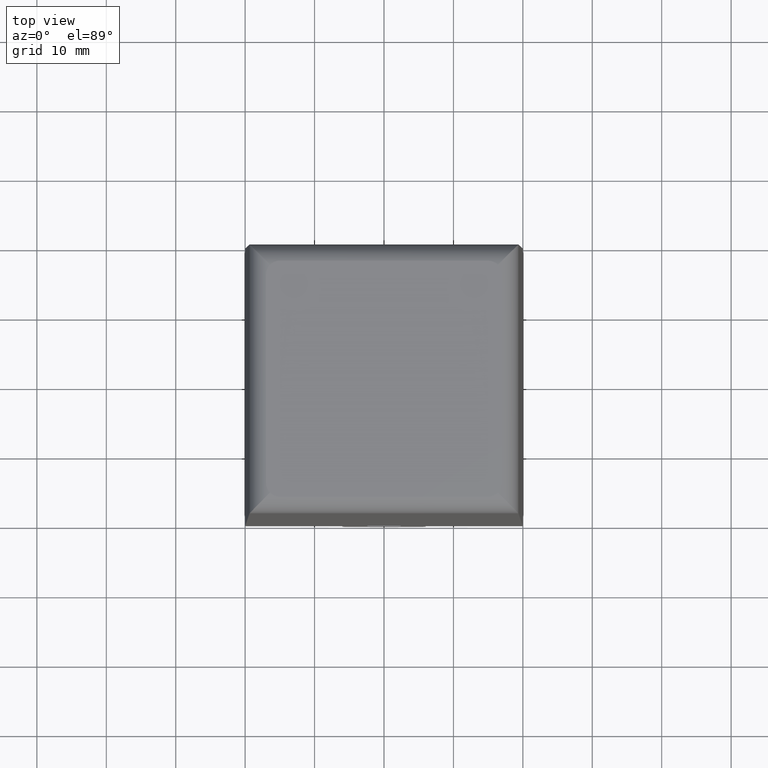
[diagram: clean part render]
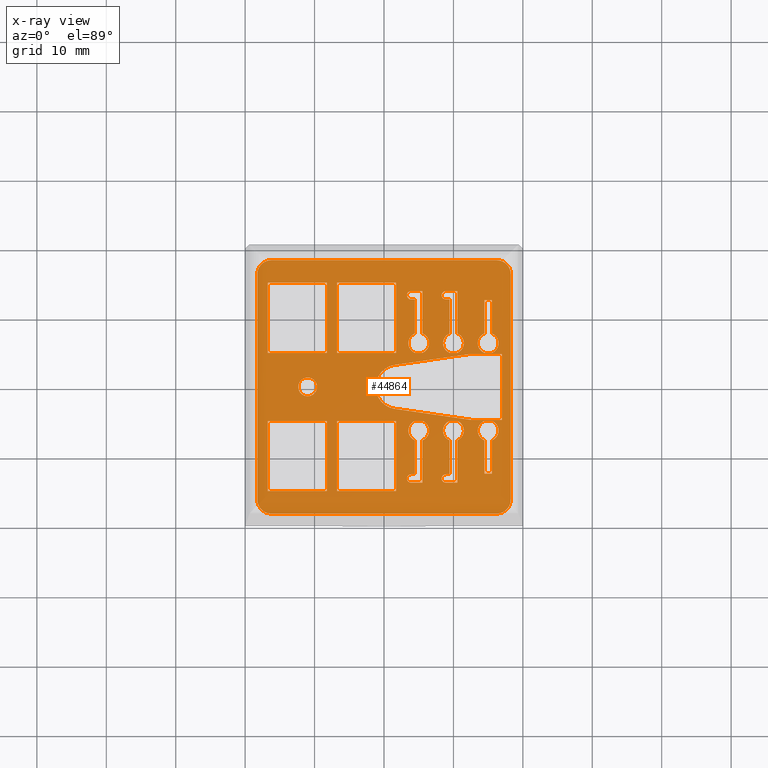
[diagram: x-ray — body ghosted, one internal face saturated and labeled with its STEP entity id]
A machine part, top view, then the same camera in x-ray: the body is ghosted and one INTERNAL B-rep face — a face not visible from any outside direction — is saturated and labeled: STEP entity #44864.
In plain terms, the highlighted planar face has unit normal (0, 0, 1).
Its self-contained STEP definition (entity closure, byte-faithful):
#2865=CARTESIAN_POINT('',(15.500000000000000,12.499999999999996,-0.711275113936979));
#2866=VERTEX_POINT('',#2865);
#3420=CARTESIAN_POINT('',(14.500000000000000,12.499999999999996,-0.711275113936979));
#3421=VERTEX_POINT('',#3420);
#3422=CARTESIAN_POINT('',(14.500000000000000,12.500000142020509,-0.711275113936977));
#3423=DIRECTION('',(1.0,0.0,0.0));
#3424=VECTOR('',#3423,1.0);
#3425=LINE('',#3422,#3424);
#3426=EDGE_CURVE('',#3421,#2866,#3425,.T.);
#3683=CARTESIAN_POINT('',(15.550002521962780,12.500000142020509,-0.711275113936980));
#3684=VERTEX_POINT('',#3683);
#3691=CARTESIAN_POINT('',(15.500000000000000,12.500000142020509,-0.711275113936977));
#3692=DIRECTION('',(1.0,0.0,0.0));
#3693=VECTOR('',#3692,0.050002521962778);
#3694=LINE('',#3691,#3693);
#3695=EDGE_CURVE('',#2866,#3684,#3694,.T.);
#3708=CARTESIAN_POINT('',(14.450002521962871,12.500000142020509,-0.711275113936978));
#3709=VERTEX_POINT('',#3708);
#3710=CARTESIAN_POINT('',(14.450002521962869,12.500000142020509,-0.711275113936977));
#3711=DIRECTION('',(1.0,0.0,0.0));
#3712=VECTOR('',#3711,0.049997478037131);
#3713=LINE('',#3710,#3712);
#3714=EDGE_CURVE('',#3709,#3421,#3713,.T.);
#4051=CARTESIAN_POINT('',(14.500000000000000,-12.500000000000000,-0.711275113936968));
#4052=VERTEX_POINT('',#4051);
#4606=CARTESIAN_POINT('',(15.500000000000000,-12.500000000000000,-0.711275113936968));
#4607=VERTEX_POINT('',#4606);
#4608=CARTESIAN_POINT('',(15.500000000000000,-12.499999857979947,-0.711275113936968));
#4609=DIRECTION('',(-1.0,0.0,0.0));
#4610=VECTOR('',#4609,1.0);
#4611=LINE('',#4608,#4610);
#4612=EDGE_CURVE('',#4607,#4052,#4611,.T.);
#4869=CARTESIAN_POINT('',(14.450002521962871,-12.499999857979947,-0.711275113936968));
#4870=VERTEX_POINT('',#4869);
#4877=CARTESIAN_POINT('',(14.500000000000000,-12.499999857979947,-0.711275113936967));
#4878=DIRECTION('',(-1.0,0.0,0.0));
#4879=VECTOR('',#4878,0.049997478037131);
#4880=LINE('',#4877,#4879);
#4881=EDGE_CURVE('',#4052,#4870,#4880,.T.);
#4894=CARTESIAN_POINT('',(15.550002521962780,-12.499999857979947,-0.711275113936968));
#4895=VERTEX_POINT('',#4894);
#4896=CARTESIAN_POINT('',(15.550002521962778,-12.499999857979947,-0.711275113936968));
#4897=DIRECTION('',(-1.0,0.0,0.0));
#4898=VECTOR('',#4897,0.050002521962778);
#4899=LINE('',#4896,#4898);
#4900=EDGE_CURVE('',#4895,#4607,#4899,.T.);
#30542=CARTESIAN_POINT('',(16.250002521962600,-18.249999857979489,-0.711275113936966));
#30543=VERTEX_POINT('',#30542);
#30550=CARTESIAN_POINT('',(2.000002521963051,-18.249999857979038,-0.711275113936499));
#30551=VERTEX_POINT('',#30550);
#30552=CARTESIAN_POINT('',(16.250002521962593,-18.249999857979493,-0.711275113936965));
#30553=DIRECTION('',(-1.0,0.0,0.0));
#30554=VECTOR('',#30553,14.249999999999545);
#30555=LINE('',#30552,#30554);
#30556=EDGE_CURVE('',#30543,#30551,#30555,.T.);
#30565=CARTESIAN_POINT('',(-1.999997478036950,-18.249999857979038,-0.711275113936499));
#30566=VERTEX_POINT('',#30565);
#30573=CARTESIAN_POINT('',(-16.249997478037407,-18.249999857979489,-0.711275113936946));
#30574=VERTEX_POINT('',#30573);
#30575=CARTESIAN_POINT('',(-1.999997478036956,-18.249999857979489,-0.711275113936954));
#30576=DIRECTION('',(-1.0,0.0,0.0));
#30577=VECTOR('',#30576,14.250000000000451);
#30578=LINE('',#30575,#30577);
#30579=EDGE_CURVE('',#30566,#30574,#30578,.T.);
#30611=CARTESIAN_POINT('',(18.250002521962600,-16.249999857979493,-0.711275113936969));
#30612=VERTEX_POINT('',#30611);
#30619=CARTESIAN_POINT('',(16.250002521962600,-16.249999857979493,-0.711275113936967));
#30620=DIRECTION('',(-6.123032E-017,6.123032E-017,-1.000000000000000));
#30621=DIRECTION('',(0.707106781186548,-0.707106781186548,-8.659275E-017));
#30622=AXIS2_PLACEMENT_3D('',#30619,#30620,#30621);
#30623=CIRCLE('',#30622,2.000000000000002);
#30624=EDGE_CURVE('',#30612,#30543,#30623,.T.);
#30636=CARTESIAN_POINT('',(18.250002521962600,16.250000142020966,-0.711275113936983));
#30637=VERTEX_POINT('',#30636);
#30644=CARTESIAN_POINT('',(18.250002521962717,16.250000142020962,-0.711275113936983));
#30645=DIRECTION('',(0.0,-1.0,0.0));
#30646=VECTOR('',#30645,32.500000000000455);
#30647=LINE('',#30644,#30646);
#30648=EDGE_CURVE('',#30637,#30612,#30647,.T.);
#30660=CARTESIAN_POINT('',(16.250002521962600,18.250000142020507,-0.711275113936982));
#30661=VERTEX_POINT('',#30660);
#30668=CARTESIAN_POINT('',(16.250002521962600,16.250000142020507,-0.711275113936981));
#30669=DIRECTION('',(-5.053195E-016,-5.053195E-016,-1.000000000000000));
#30670=DIRECTION('',(0.707106781186467,0.707106781186628,-7.146297E-016));
#30671=AXIS2_PLACEMENT_3D('',#30668,#30669,#30670);
#30672=CIRCLE('',#30671,2.0);
#30673=EDGE_CURVE('',#30661,#30637,#30672,.T.);
#30750=CARTESIAN_POINT('',(-18.249997478036949,16.250000142020507,-0.711275113936961));
#30751=VERTEX_POINT('',#30750);
#30758=CARTESIAN_POINT('',(-16.249997478037407,18.250000142020507,-0.711275113936965));
#30759=VERTEX_POINT('',#30758);
#30760=CARTESIAN_POINT('',(-16.249997478037407,16.250000142020507,-0.711275113936963));
#30761=DIRECTION('',(-6.123032E-017,6.123032E-017,-1.000000000000000));
#30762=DIRECTION('',(-0.707106781186568,0.707106781186527,8.659275E-017));
#30763=AXIS2_PLACEMENT_3D('',#30760,#30761,#30762);
#30764=CIRCLE('',#30763,2.0);
#30765=EDGE_CURVE('',#30751,#30759,#30764,.T.);
#30851=CARTESIAN_POINT('',(2.000002521963047,-18.249999857979489,-0.711275113936956));
#30852=DIRECTION('',(-1.0,0.0,0.0));
#30853=VECTOR('',#30852,4.000000000000004);
#30854=LINE('',#30851,#30853);
#30855=EDGE_CURVE('',#30551,#30566,#30854,.T.);
#30995=CARTESIAN_POINT('',(2.000002521963051,18.250000142020962,-0.711275113936950));
#30996=VERTEX_POINT('',#30995);
#31004=CARTESIAN_POINT('',(-1.999997478036950,18.250000142020962,-0.711275113936950));
#31005=VERTEX_POINT('',#31004);
#31012=CARTESIAN_POINT('',(-1.999997478036946,18.250000142020507,-0.711275113936972));
#31013=DIRECTION('',(1.0,0.0,0.0));
#31014=VECTOR('',#31013,4.0);
#31015=LINE('',#31012,#31014);
#31016=EDGE_CURVE('',#31005,#30996,#31015,.T.);
#31074=CARTESIAN_POINT('',(-16.249997478037400,18.250000142020511,-0.711275113936964));
#31075=DIRECTION('',(1.0,0.0,0.0));
#31076=VECTOR('',#31075,14.250000000000455);
#31077=LINE('',#31074,#31076);
#31078=EDGE_CURVE('',#30759,#31005,#31077,.T.);
#31083=CARTESIAN_POINT('',(2.000002521963054,18.250000142020507,-0.711275113936974));
#31084=DIRECTION('',(1.0,0.0,0.0));
#31085=VECTOR('',#31084,14.249999999999545);
#31086=LINE('',#31083,#31085);
#31087=EDGE_CURVE('',#30996,#30661,#31086,.T.);
#32826=CARTESIAN_POINT('',(-10.999997478037402,1.350000142020418,-0.711275113936959));
#32827=VERTEX_POINT('',#32826);
#32828=CARTESIAN_POINT('',(-10.999997478037397,0.000000142020515,-0.711275113936959));
#32829=DIRECTION('',(0.0,0.0,-1.0));
#32830=DIRECTION('',(0.0,1.0,0.0));
#32831=AXIS2_PLACEMENT_3D('',#32828,#32829,#32830);
#32832=CIRCLE('',#32831,1.350000000000023);
#32833=EDGE_CURVE('',#32827,#32827,#32832,.T.);
#32853=CARTESIAN_POINT('',(8.900002521962689,12.600000142020873,-0.711275113936974));
#32854=VERTEX_POINT('',#32853);
#32861=CARTESIAN_POINT('',(9.450002521962414,12.600000142020418,-0.711275113936978));
#32862=VERTEX_POINT('',#32861);
#32863=CARTESIAN_POINT('',(9.450002521962416,12.600000142020624,-0.711275113936975));
#32864=DIRECTION('',(-1.0,4.134067E-013,6.055762E-016));
#32865=VECTOR('',#32864,0.549999999999727);
#32866=LINE('',#32863,#32865);
#32867=EDGE_CURVE('',#32862,#32854,#32866,.T.);
#32893=CARTESIAN_POINT('',(10.550002521962325,13.800000142021144,-0.711275113936978));
#32894=VERTEX_POINT('',#32893);
#32901=CARTESIAN_POINT('',(8.900002521962689,13.800000142021144,-0.711275113936976));
#32902=VERTEX_POINT('',#32901);
#32903=CARTESIAN_POINT('',(8.900002521962689,13.800000142021144,-0.711275113936976));
#32904=DIRECTION('',(1.0,0.0,0.0));
#32905=VECTOR('',#32904,1.649999999999636);
#32906=LINE('',#32903,#32905);
#32907=EDGE_CURVE('',#32902,#32894,#32906,.T.);
#32931=CARTESIAN_POINT('',(8.900002521962689,13.200000142020780,-0.711275113936976));
#32932=DIRECTION('',(-5.665498E-016,1.610578E-028,-1.0));
#32933=DIRECTION('',(-1.0,2.842783E-013,5.665498E-016));
#32934=AXIS2_PLACEMENT_3D('',#32931,#32932,#32933);
#32935=CIRCLE('',#32934,0.600000000000136);
#32936=EDGE_CURVE('',#32854,#32902,#32935,.T.);
#32983=CARTESIAN_POINT('',(3.900002521962689,12.600000142020873,-0.711275113936972));
#32984=VERTEX_POINT('',#32983);
#32991=CARTESIAN_POINT('',(4.450002521962415,12.600000142020418,-0.711275113936972));
#32992=VERTEX_POINT('',#32991);
#32993=CARTESIAN_POINT('',(4.450002521962416,12.600000142020750,-0.711275113936974));
#32994=DIRECTION('',(-1.0,4.134067E-013,6.055762E-016));
#32995=VECTOR('',#32994,0.549999999999728);
#32996=LINE('',#32993,#32995);
#32997=EDGE_CURVE('',#32992,#32984,#32996,.T.);
#33023=CARTESIAN_POINT('',(5.550002521962778,13.800000142021144,-0.711275113936974));
#33024=VERTEX_POINT('',#33023);
#33031=CARTESIAN_POINT('',(3.900002521962689,13.800000142021144,-0.711275113936972));
#33032=VERTEX_POINT('',#33031);
#33033=CARTESIAN_POINT('',(3.900002521962688,13.800000142021144,-0.711275113936973));
#33034=DIRECTION('',(1.0,0.0,0.0));
#33035=VECTOR('',#33034,1.650000000000091);
#33036=LINE('',#33033,#33035);
#33037=EDGE_CURVE('',#33032,#33024,#33036,.T.);
#33061=CARTESIAN_POINT('',(3.900002521962689,13.200000142020780,-0.711275113936972));
#33062=DIRECTION('',(-5.665498E-016,1.610578E-028,-1.0));
#33063=DIRECTION('',(-1.0,2.842783E-013,5.665498E-016));
#33064=AXIS2_PLACEMENT_3D('',#33061,#33062,#33063);
#33065=CIRCLE('',#33064,0.600000000000136);
#33066=EDGE_CURVE('',#32984,#33032,#33065,.T.);
#43200=CARTESIAN_POINT('',(9.450002521962414,-12.599999857979402,-0.711275113936965));
#43201=VERTEX_POINT('',#43200);
#43208=CARTESIAN_POINT('',(8.900002521962689,-12.599999857979402,-0.711275113936965));
#43209=VERTEX_POINT('',#43208);
#43210=CARTESIAN_POINT('',(8.900002521962689,-12.599999857979380,-0.711275113936964));
#43211=DIRECTION('',(1.0,4.134067E-013,-6.055762E-016));
#43212=VECTOR('',#43211,0.549999999999727);
#43213=LINE('',#43210,#43212);
#43214=EDGE_CURVE('',#43209,#43201,#43213,.T.);
#43240=CARTESIAN_POINT('',(8.900002521962689,-13.799999857979675,-0.711275113936965));
#43241=VERTEX_POINT('',#43240);
#43248=CARTESIAN_POINT('',(10.550002521962325,-13.799999857979675,-0.711275113936965));
#43249=VERTEX_POINT('',#43248);
#43250=CARTESIAN_POINT('',(10.550002521962325,-13.799999857979675,-0.711275113936965));
#43251=DIRECTION('',(-1.0,0.0,0.0));
#43252=VECTOR('',#43251,1.649999999999636);
#43253=LINE('',#43250,#43252);
#43254=EDGE_CURVE('',#43249,#43241,#43253,.T.);
#43278=CARTESIAN_POINT('',(8.900002521962689,-13.199999857979767,-0.711275113936965));
#43279=DIRECTION('',(-5.665498E-016,-1.609885E-028,-1.0));
#43280=DIRECTION('',(-1.0,-2.841559E-013,5.665498E-016));
#43281=AXIS2_PLACEMENT_3D('',#43278,#43279,#43280);
#43282=CIRCLE('',#43281,0.600000000000136);
#43283=EDGE_CURVE('',#43241,#43209,#43282,.T.);
#43330=CARTESIAN_POINT('',(4.450002521962415,-12.599999857979402,-0.711275113936961));
#43331=VERTEX_POINT('',#43330);
#43338=CARTESIAN_POINT('',(3.900002521962689,-12.599999857979402,-0.711275113936961));
#43339=VERTEX_POINT('',#43338);
#43340=CARTESIAN_POINT('',(3.900002521962688,-12.599999857979507,-0.711275113936962));
#43341=DIRECTION('',(1.0,4.134067E-013,-6.055762E-016));
#43342=VECTOR('',#43341,0.549999999999728);
#43343=LINE('',#43340,#43342);
#43344=EDGE_CURVE('',#43339,#43331,#43343,.T.);
#43370=CARTESIAN_POINT('',(3.900002521962689,-13.799999857979675,-0.711275113936962));
#43371=VERTEX_POINT('',#43370);
#43378=CARTESIAN_POINT('',(5.550002521962778,-13.799999857979675,-0.711275113936962));
#43379=VERTEX_POINT('',#43378);
#43380=CARTESIAN_POINT('',(5.550002521962780,-13.799999857979675,-0.711275113936961));
#43381=DIRECTION('',(-1.0,0.0,0.0));
#43382=VECTOR('',#43381,1.650000000000091);
#43383=LINE('',#43380,#43382);
#43384=EDGE_CURVE('',#43379,#43371,#43383,.T.);
#43408=CARTESIAN_POINT('',(3.900002521962689,-13.199999857979767,-0.711275113936961));
#43409=DIRECTION('',(-5.665498E-016,-1.609885E-028,-1.0));
#43410=DIRECTION('',(-1.0,-2.841559E-013,5.665498E-016));
#43411=AXIS2_PLACEMENT_3D('',#43408,#43409,#43410);
#43412=CIRCLE('',#43411,0.600000000000136);
#43413=EDGE_CURVE('',#43371,#43339,#43412,.T.);
#44372=CARTESIAN_POINT('',(0.000002521963052,0.000000142020509,-0.711275113936965));
#44373=DIRECTION('',(0.0,0.0,1.0));
#44374=DIRECTION('',(0.0,1.0,0.0));
#44375=AXIS2_PLACEMENT_3D('',#44372,#44373,#44374);
#44376=PLANE('',#44375);
#44377=ORIENTED_EDGE('',*,*,#31078,.F.);
#44378=ORIENTED_EDGE('',*,*,#30765,.F.);
#44379=CARTESIAN_POINT('',(-18.249997478037404,-16.249999857979493,-0.711275113936946));
#44380=VERTEX_POINT('',#44379);
#44381=CARTESIAN_POINT('',(-18.249997478037180,-16.249999857979493,-0.711275113936947));
#44382=DIRECTION('',(0.0,1.0,0.0));
#44383=VECTOR('',#44382,32.500000000000000);
#44384=LINE('',#44381,#44383);
#44385=EDGE_CURVE('',#44380,#30751,#44384,.T.);
#44386=ORIENTED_EDGE('',*,*,#44385,.F.);
#44387=CARTESIAN_POINT('',(-16.249997478037407,-16.249999857979493,-0.711275113936949));
#44388=DIRECTION('',(-5.053195E-016,-5.053195E-016,-1.000000000000000));
#44389=DIRECTION('',(-0.707106781186548,-0.707106781186548,7.146297E-016));
#44390=AXIS2_PLACEMENT_3D('',#44387,#44388,#44389);
#44391=CIRCLE('',#44390,1.999999999999995);
#44392=EDGE_CURVE('',#30574,#44380,#44391,.T.);
#44393=ORIENTED_EDGE('',*,*,#44392,.F.);
#44394=ORIENTED_EDGE('',*,*,#30579,.F.);
#44395=ORIENTED_EDGE('',*,*,#30855,.F.);
#44396=ORIENTED_EDGE('',*,*,#30556,.F.);
#44397=ORIENTED_EDGE('',*,*,#30624,.F.);
#44398=ORIENTED_EDGE('',*,*,#30648,.F.);
#44399=ORIENTED_EDGE('',*,*,#30673,.F.);
#44400=ORIENTED_EDGE('',*,*,#31087,.F.);
#44401=ORIENTED_EDGE('',*,*,#31016,.F.);
#44402=EDGE_LOOP('',(#44377,#44378,#44386,#44393,#44394,#44395,#44396,#44397,#44398,#44399,#44400,#44401));
#44403=FACE_OUTER_BOUND('',#44402,.T.);
#44404=ORIENTED_EDGE('',*,*,#32833,.T.);
#44405=EDGE_LOOP('',(#44404));
#44406=FACE_BOUND('',#44405,.T.);
#44407=CARTESIAN_POINT('',(10.550002521962778,7.695528715715865,-0.711275113936859));
#44408=VERTEX_POINT('',#44407);
#44409=CARTESIAN_POINT('',(10.550002521962577,13.800000142021146,-0.711275113936977));
#44410=DIRECTION('',(0.0,-1.0,0.0));
#44411=VECTOR('',#44410,6.104471426305281);
#44412=LINE('',#44409,#44411);
#44413=EDGE_CURVE('',#32894,#44408,#44412,.T.);
#44414=ORIENTED_EDGE('',*,*,#44413,.T.);
#44415=CARTESIAN_POINT('',(10.538519002676095,4.900000142020600,-0.711275113936973));
#44416=VERTEX_POINT('',#44415);
#44417=CARTESIAN_POINT('',(10.000002521963051,6.300000142020689,-0.711275113936973));
#44418=DIRECTION('',(-5.647161E-016,2.319750E-018,-1.0));
#44419=DIRECTION('',(0.999991563027276,-0.004107782159073,-5.647208E-016));
#44420=AXIS2_PLACEMENT_3D('',#44417,#44418,#44419);
#44421=CIRCLE('',#44420,1.499999999999884);
#44422=EDGE_CURVE('',#44408,#44416,#44421,.T.);
#44423=ORIENTED_EDGE('',*,*,#44422,.T.);
#44424=CARTESIAN_POINT('',(9.461486041249556,4.900000142020600,-0.711275113936973));
#44425=VERTEX_POINT('',#44424);
#44426=CARTESIAN_POINT('',(10.538519002676095,4.900000142020600,-0.711275113936973));
#44427=DIRECTION('',(-1.0,0.0,0.0));
#44428=VECTOR('',#44427,1.077032961426539);
#44429=LINE('',#44426,#44428);
#44430=EDGE_CURVE('',#44416,#44425,#44429,.T.);
#44431=ORIENTED_EDGE('',*,*,#44430,.T.);
#44432=CARTESIAN_POINT('',(9.450002521962871,7.695528715715865,-0.711275113936859));
#44433=VERTEX_POINT('',#44432);
#44434=CARTESIAN_POINT('',(10.000002521962600,6.300000142020689,-0.711275113936973));
#44435=DIRECTION('',(-5.683645E-016,-2.334737E-018,-1.000000000000000));
#44436=DIRECTION('',(-0.999991563027275,-0.004107782159195,5.683693E-016));
#44437=AXIS2_PLACEMENT_3D('',#44434,#44435,#44436);
#44438=CIRCLE('',#44437,1.499999999999920);
#44439=EDGE_CURVE('',#44425,#44433,#44438,.T.);
#44440=ORIENTED_EDGE('',*,*,#44439,.T.);
#44441=CARTESIAN_POINT('',(9.450002521968106,7.695528715715864,-0.711275113936974));
#44442=DIRECTION('',(-1.136918E-012,1.0,-4.301022E-016));
#44443=VECTOR('',#44442,4.904471426304553);
#44444=LINE('',#44441,#44443);
#44445=EDGE_CURVE('',#44433,#32862,#44444,.T.);
#44446=ORIENTED_EDGE('',*,*,#44445,.T.);
#44447=ORIENTED_EDGE('',*,*,#32867,.T.);
#44448=ORIENTED_EDGE('',*,*,#32936,.T.);
#44449=ORIENTED_EDGE('',*,*,#32907,.T.);
#44450=EDGE_LOOP('',(#44414,#44423,#44431,#44440,#44446,#44447,#44448,#44449));
#44451=FACE_BOUND('',#44450,.T.);
#44452=CARTESIAN_POINT('',(5.550002521962778,7.695528715715865,-0.711275113936858));
#44453=VERTEX_POINT('',#44452);
#44454=CARTESIAN_POINT('',(5.550002521962779,13.800000142021146,-0.711275113936975));
#44455=DIRECTION('',(0.0,-1.0,0.0));
#44456=VECTOR('',#44455,6.104471426305281);
#44457=LINE('',#44454,#44456);
#44458=EDGE_CURVE('',#33024,#44453,#44457,.T.);
#44459=ORIENTED_EDGE('',*,*,#44458,.T.);
#44460=CARTESIAN_POINT('',(5.538519002676095,4.900000142020600,-0.711275113936970));
#44461=VERTEX_POINT('',#44460);
#44462=CARTESIAN_POINT('',(5.000002521963052,6.300000142020689,-0.711275113936972));
#44463=DIRECTION('',(-5.647161E-016,2.319750E-018,-1.0));
#44464=DIRECTION('',(0.999991563027276,-0.004107782159073,-5.647208E-016));
#44465=AXIS2_PLACEMENT_3D('',#44462,#44463,#44464);
#44466=CIRCLE('',#44465,1.499999999999884);
#44467=EDGE_CURVE('',#44453,#44461,#44466,.T.);
#44468=ORIENTED_EDGE('',*,*,#44467,.T.);
#44469=CARTESIAN_POINT('',(4.461486041249554,4.900000142020600,-0.711275113936970));
#44470=VERTEX_POINT('',#44469);
#44471=CARTESIAN_POINT('',(5.538519002676095,4.900000142020600,-0.711275113936970));
#44472=DIRECTION('',(-1.0,0.0,0.0));
#44473=VECTOR('',#44472,1.077032961426539);
#44474=LINE('',#44471,#44473);
#44475=EDGE_CURVE('',#44461,#44470,#44474,.T.);
#44476=ORIENTED_EDGE('',*,*,#44475,.T.);
#44477=CARTESIAN_POINT('',(4.450002521962871,7.695528715715865,-0.711275113936858));
#44478=VERTEX_POINT('',#44477);
#44479=CARTESIAN_POINT('',(5.000002521962596,6.300000142020689,-0.711275113936972));
#44480=DIRECTION('',(-5.683645E-016,-2.334737E-018,-1.000000000000000));
#44481=DIRECTION('',(-0.999991563027275,-0.004107782159236,5.683693E-016));
#44482=AXIS2_PLACEMENT_3D('',#44479,#44480,#44481);
#44483=CIRCLE('',#44482,1.499999999999884);
#44484=EDGE_CURVE('',#44470,#44478,#44483,.T.);
#44485=ORIENTED_EDGE('',*,*,#44484,.T.);
#44486=CARTESIAN_POINT('',(4.450002521962415,7.695528715715863,-0.711275113936972));
#44487=DIRECTION('',(0.0,1.0,0.0));
#44488=VECTOR('',#44487,4.904471426304554);
#44489=LINE('',#44486,#44488);
#44490=EDGE_CURVE('',#44478,#32992,#44489,.T.);
#44491=ORIENTED_EDGE('',*,*,#44490,.T.);
#44492=ORIENTED_EDGE('',*,*,#32997,.T.);
#44493=ORIENTED_EDGE('',*,*,#33066,.T.);
#44494=ORIENTED_EDGE('',*,*,#33037,.T.);
#44495=EDGE_LOOP('',(#44459,#44468,#44476,#44485,#44491,#44492,#44493,#44494));
#44496=FACE_BOUND('',#44495,.T.);
#44497=CARTESIAN_POINT('',(-6.749997478037404,-14.999999857979036,-0.711275113936956));
#44498=VERTEX_POINT('',#44497);
#44499=CARTESIAN_POINT('',(-6.749997478037404,-4.899999857979127,-0.711275113936959));
#44500=VERTEX_POINT('',#44499);
#44501=CARTESIAN_POINT('',(-6.749997478036953,-14.999999857979038,-0.711275113936954));
#44502=DIRECTION('',(0.0,1.0,0.0));
#44503=VECTOR('',#44502,10.099999999999909);
#44504=LINE('',#44501,#44503);
#44505=EDGE_CURVE('',#44498,#44500,#44504,.T.);
#44506=ORIENTED_EDGE('',*,*,#44505,.T.);
#44507=CARTESIAN_POINT('',(1.750002521962597,-4.899999857979127,-0.711275113937191));
#44508=VERTEX_POINT('',#44507);
#44509=CARTESIAN_POINT('',(-6.749997478037401,-4.899999857979125,-0.711275113936959));
#44510=DIRECTION('',(1.0,0.0,0.0));
#44511=VECTOR('',#44510,8.500000000000000);
#44512=LINE('',#44509,#44511);
#44513=EDGE_CURVE('',#44500,#44508,#44512,.T.);
#44514=ORIENTED_EDGE('',*,*,#44513,.T.);
#44515=CARTESIAN_POINT('',(1.750002521962597,-14.999999857979036,-0.711275113937187));
#44516=VERTEX_POINT('',#44515);
#44517=CARTESIAN_POINT('',(1.750002521963053,-4.899999857979130,-0.711275113936964));
#44518=DIRECTION('',(0.0,-1.0,0.0));
#44519=VECTOR('',#44518,10.099999999999909);
#44520=LINE('',#44517,#44519);
#44521=EDGE_CURVE('',#44508,#44516,#44520,.T.);
#44522=ORIENTED_EDGE('',*,*,#44521,.T.);
#44523=CARTESIAN_POINT('',(1.750002521962599,-14.999999857979036,-0.711275113936958));
#44524=DIRECTION('',(-1.0,0.0,0.0));
#44525=VECTOR('',#44524,8.500000000000000);
#44526=LINE('',#44523,#44525);
#44527=EDGE_CURVE('',#44516,#44498,#44526,.T.);
#44528=ORIENTED_EDGE('',*,*,#44527,.T.);
#44529=EDGE_LOOP('',(#44506,#44514,#44522,#44528));
#44530=FACE_BOUND('',#44529,.T.);
#44531=CARTESIAN_POINT('',(-16.749997478037404,-14.999999857979036,-0.711275113936949));
#44532=VERTEX_POINT('',#44531);
#44533=CARTESIAN_POINT('',(-16.749997478037404,-4.899999857979127,-0.711275113936953));
#44534=VERTEX_POINT('',#44533);
#44535=CARTESIAN_POINT('',(-16.749997478036956,-14.999999857979038,-0.711275113936950));
#44536=DIRECTION('',(0.0,1.0,0.0));
#44537=VECTOR('',#44536,10.099999999999909);
#44538=LINE('',#44535,#44537);
#44539=EDGE_CURVE('',#44532,#44534,#44538,.T.);
#44540=ORIENTED_EDGE('',*,*,#44539,.T.);
#44541=CARTESIAN_POINT('',(-8.249997478037404,-4.899999857979127,-0.711275113937186));
#44542=VERTEX_POINT('',#44541);
#44543=CARTESIAN_POINT('',(-16.749997478037407,-4.899999857979124,-0.711275113936953));
#44544=DIRECTION('',(1.0,0.0,0.0));
#44545=VECTOR('',#44544,8.500000000000002);
#44546=LINE('',#44543,#44545);
#44547=EDGE_CURVE('',#44534,#44542,#44546,.T.);
#44548=ORIENTED_EDGE('',*,*,#44547,.T.);
#44549=CARTESIAN_POINT('',(-8.249997478037404,-14.999999857979036,-0.711275113937180));
#44550=VERTEX_POINT('',#44549);
#44551=CARTESIAN_POINT('',(-8.249997478036949,-4.899999857979130,-0.711275113936958));
#44552=DIRECTION('',(0.0,-1.0,0.0));
#44553=VECTOR('',#44552,10.099999999999909);
#44554=LINE('',#44551,#44553);
#44555=EDGE_CURVE('',#44542,#44550,#44554,.T.);
#44556=ORIENTED_EDGE('',*,*,#44555,.T.);
#44557=CARTESIAN_POINT('',(-8.249997478037406,-14.999999857979036,-0.711275113936955));
#44558=DIRECTION('',(-1.0,0.0,0.0));
#44559=VECTOR('',#44558,8.500000000000002);
#44560=LINE('',#44557,#44559);
#44561=EDGE_CURVE('',#44550,#44532,#44560,.T.);
#44562=ORIENTED_EDGE('',*,*,#44561,.T.);
#44563=EDGE_LOOP('',(#44540,#44548,#44556,#44562));
#44564=FACE_BOUND('',#44563,.T.);
#44565=CARTESIAN_POINT('',(-16.749997478037404,4.900000142021055,-0.711275113936957));
#44566=VERTEX_POINT('',#44565);
#44567=CARTESIAN_POINT('',(-16.749997478037404,15.000000142020964,-0.711275113936962));
#44568=VERTEX_POINT('',#44567);
#44569=CARTESIAN_POINT('',(-16.749997478036953,4.900000142021053,-0.711275113936957));
#44570=DIRECTION('',(0.0,1.0,0.0));
#44571=VECTOR('',#44570,10.099999999999909);
#44572=LINE('',#44569,#44571);
#44573=EDGE_CURVE('',#44566,#44568,#44572,.T.);
#44574=ORIENTED_EDGE('',*,*,#44573,.T.);
#44575=CARTESIAN_POINT('',(-8.249997478037404,15.000000142020964,-0.711275113937194));
#44576=VERTEX_POINT('',#44575);
#44577=CARTESIAN_POINT('',(-16.749997478037407,15.000000142020967,-0.711275113936963));
#44578=DIRECTION('',(1.0,0.0,0.0));
#44579=VECTOR('',#44578,8.500000000000002);
#44580=LINE('',#44577,#44579);
#44581=EDGE_CURVE('',#44568,#44576,#44580,.T.);
#44582=ORIENTED_EDGE('',*,*,#44581,.T.);
#44583=CARTESIAN_POINT('',(-8.249997478037404,4.900000142021055,-0.711275113937188));
#44584=VERTEX_POINT('',#44583);
#44585=CARTESIAN_POINT('',(-8.249997478037400,15.000000142020962,-0.711275113936967));
#44586=DIRECTION('',(0.0,-1.0,0.0));
#44587=VECTOR('',#44586,10.099999999999909);
#44588=LINE('',#44585,#44587);
#44589=EDGE_CURVE('',#44576,#44584,#44588,.T.);
#44590=ORIENTED_EDGE('',*,*,#44589,.T.);
#44591=CARTESIAN_POINT('',(-8.249997478037406,4.900000142021056,-0.711275113936963));
#44592=DIRECTION('',(-1.0,0.0,0.0));
#44593=VECTOR('',#44592,8.500000000000002);
#44594=LINE('',#44591,#44593);
#44595=EDGE_CURVE('',#44584,#44566,#44594,.T.);
#44596=ORIENTED_EDGE('',*,*,#44595,.T.);
#44597=EDGE_LOOP('',(#44574,#44582,#44590,#44596));
#44598=FACE_BOUND('',#44597,.T.);
#44599=CARTESIAN_POINT('',(-6.749997478037404,4.900000142021055,-0.711275113936961));
#44600=VERTEX_POINT('',#44599);
#44601=CARTESIAN_POINT('',(-6.749997478037404,15.000000142020964,-0.711275113936969));
#44602=VERTEX_POINT('',#44601);
#44603=CARTESIAN_POINT('',(-6.749997478037403,4.900000142021053,-0.711275113936962));
#44604=DIRECTION('',(0.0,1.0,0.0));
#44605=VECTOR('',#44604,10.099999999999909);
#44606=LINE('',#44603,#44605);
#44607=EDGE_CURVE('',#44600,#44602,#44606,.T.);
#44608=ORIENTED_EDGE('',*,*,#44607,.T.);
#44609=CARTESIAN_POINT('',(1.750002521962597,15.000000142020964,-0.711275113937201));
#44610=VERTEX_POINT('',#44609);
#44611=CARTESIAN_POINT('',(-6.749997478037401,15.000000142020966,-0.711275113936967));
#44612=DIRECTION('',(1.0,0.0,0.0));
#44613=VECTOR('',#44612,8.500000000000000);
#44614=LINE('',#44611,#44613);
#44615=EDGE_CURVE('',#44602,#44610,#44614,.T.);
#44616=ORIENTED_EDGE('',*,*,#44615,.T.);
#44617=CARTESIAN_POINT('',(1.750002521962597,4.900000142021055,-0.711275113937195));
#44618=VERTEX_POINT('',#44617);
#44619=CARTESIAN_POINT('',(1.750002521962601,15.000000142020962,-0.711275113936970));
#44620=DIRECTION('',(0.0,-1.0,0.0));
#44621=VECTOR('',#44620,10.099999999999909);
#44622=LINE('',#44619,#44621);
#44623=EDGE_CURVE('',#44610,#44618,#44622,.T.);
#44624=ORIENTED_EDGE('',*,*,#44623,.T.);
#44625=CARTESIAN_POINT('',(1.750002521962599,4.900000142021054,-0.711275113936968));
#44626=DIRECTION('',(-1.0,0.0,0.0));
#44627=VECTOR('',#44626,8.500000000000000);
#44628=LINE('',#44625,#44627);
#44629=EDGE_CURVE('',#44618,#44600,#44628,.T.);
#44630=ORIENTED_EDGE('',*,*,#44629,.T.);
#44631=EDGE_LOOP('',(#44608,#44616,#44624,#44630));
#44632=FACE_BOUND('',#44631,.T.);
#44633=CARTESIAN_POINT('',(17.000002521962600,4.750000142020507,-0.711275113936975));
#44634=VERTEX_POINT('',#44633);
#44635=CARTESIAN_POINT('',(17.000002521962600,-4.749999857979037,-0.711275113936973));
#44636=VERTEX_POINT('',#44635);
#44637=CARTESIAN_POINT('',(17.000002521962600,4.750000142020508,-0.711275113936977));
#44638=DIRECTION('',(0.0,-1.0,0.0));
#44639=VECTOR('',#44638,9.499999999999545);
#44640=LINE('',#44637,#44639);
#44641=EDGE_CURVE('',#44634,#44636,#44640,.T.);
#44642=ORIENTED_EDGE('',*,*,#44641,.T.);
#44643=CARTESIAN_POINT('',(12.500002521963051,-4.749999857979037,-0.711275113936969));
#44644=VERTEX_POINT('',#44643);
#44645=CARTESIAN_POINT('',(17.000002521962600,-4.749999857979038,-0.711275113936972));
#44646=DIRECTION('',(-1.0,0.0,0.0));
#44647=VECTOR('',#44646,4.499999999999547);
#44648=LINE('',#44645,#44647);
#44649=EDGE_CURVE('',#44636,#44644,#44648,.T.);
#44650=ORIENTED_EDGE('',*,*,#44649,.T.);
#44651=CARTESIAN_POINT('',(1.542493270629348,-3.167125571453018,-0.711275113936964));
#44652=VERTEX_POINT('',#44651);
#44653=CARTESIAN_POINT('',(12.500002521963061,-4.749999857978978,-0.711275113936971));
#44654=DIRECTION('',(-0.989726785460449,0.142971641041595,4.913713E-016));
#44655=VECTOR('',#44654,11.071246542282804);
#44656=LINE('',#44653,#44655);
#44657=EDGE_CURVE('',#44644,#44652,#44656,.T.);
#44658=ORIENTED_EDGE('',*,*,#44657,.T.);
#44659=CARTESIAN_POINT('',(1.542493270629348,3.167125855494033,-0.711275113936967));
#44660=VERTEX_POINT('',#44659);
#44661=CARTESIAN_POINT('',(2.000002521962596,0.000000142020509,-0.711275113936965));
#44662=DIRECTION('',(0.0,0.0,-1.0));
#44663=DIRECTION('',(-1.0,0.0,0.0));
#44664=AXIS2_PLACEMENT_3D('',#44661,#44662,#44663);
#44665=CIRCLE('',#44664,3.200000000000052);
#44666=EDGE_CURVE('',#44652,#44660,#44665,.T.);
#44667=ORIENTED_EDGE('',*,*,#44666,.T.);
#44668=CARTESIAN_POINT('',(12.500002521961234,4.750000142020507,-0.711275113936975));
#44669=VERTEX_POINT('',#44668);
#44670=CARTESIAN_POINT('',(1.542493270629366,3.167125855493911,-0.711275113936967));
#44671=DIRECTION('',(0.989726785460445,0.142971641041621,-6.217351E-016));
#44672=VECTOR('',#44671,11.071246542281076);
#44673=LINE('',#44670,#44672);
#44674=EDGE_CURVE('',#44660,#44669,#44673,.T.);
#44675=ORIENTED_EDGE('',*,*,#44674,.T.);
#44676=CARTESIAN_POINT('',(12.500002521961232,4.750000142020507,-0.711275113936973));
#44677=DIRECTION('',(1.0,0.0,0.0));
#44678=VECTOR('',#44677,4.500000000001364);
#44679=LINE('',#44676,#44678);
#44680=EDGE_CURVE('',#44669,#44634,#44679,.T.);
#44681=ORIENTED_EDGE('',*,*,#44680,.T.);
#44682=EDGE_LOOP('',(#44642,#44650,#44658,#44667,#44675,#44681));
#44683=FACE_BOUND('',#44682,.T.);
#44684=CARTESIAN_POINT('',(5.550002521962778,-7.695528431674394,-0.711275113936851));
#44685=VERTEX_POINT('',#44684);
#44686=CARTESIAN_POINT('',(5.550002521962778,-7.695528431674394,-0.711275113936965));
#44687=DIRECTION('',(0.0,-1.0,0.0));
#44688=VECTOR('',#44687,6.104471426305280);
#44689=LINE('',#44686,#44688);
#44690=EDGE_CURVE('',#44685,#43379,#44689,.T.);
#44691=ORIENTED_EDGE('',*,*,#44690,.T.);
#44692=ORIENTED_EDGE('',*,*,#43384,.T.);
#44693=ORIENTED_EDGE('',*,*,#43413,.T.);
#44694=ORIENTED_EDGE('',*,*,#43344,.T.);
#44695=CARTESIAN_POINT('',(4.450002521962871,-7.695528431674394,-0.711275113936849));
#44696=VERTEX_POINT('',#44695);
#44697=CARTESIAN_POINT('',(4.450002521962415,-12.599999857979402,-0.711275113936960));
#44698=DIRECTION('',(0.0,1.0,0.0));
#44699=VECTOR('',#44698,4.904471426305008);
#44700=LINE('',#44697,#44699);
#44701=EDGE_CURVE('',#43331,#44696,#44700,.T.);
#44702=ORIENTED_EDGE('',*,*,#44701,.T.);
#44703=CARTESIAN_POINT('',(4.461486041249101,-4.899999857979585,-0.711275113936966));
#44704=VERTEX_POINT('',#44703);
#44705=CARTESIAN_POINT('',(5.000002521962596,-6.299999857979222,-0.711275113936964));
#44706=DIRECTION('',(-5.647161E-016,2.319750E-018,-1.000000000000000));
#44707=DIRECTION('',(-0.999991563027276,0.004107782158911,5.647208E-016));
#44708=AXIS2_PLACEMENT_3D('',#44705,#44706,#44707);
#44709=CIRCLE('',#44708,1.499999999999884);
#44710=EDGE_CURVE('',#44696,#44704,#44709,.T.);
#44711=ORIENTED_EDGE('',*,*,#44710,.T.);
#44712=CARTESIAN_POINT('',(5.538519002675639,-4.899999857979585,-0.711275113936966));
#44713=VERTEX_POINT('',#44712);
#44714=CARTESIAN_POINT('',(4.461486041249099,-4.899999857979585,-0.711275113936965));
#44715=DIRECTION('',(1.0,0.0,0.0));
#44716=VECTOR('',#44715,1.077032961426539);
#44717=LINE('',#44714,#44716);
#44718=EDGE_CURVE('',#44704,#44713,#44717,.T.);
#44719=ORIENTED_EDGE('',*,*,#44718,.T.);
#44720=CARTESIAN_POINT('',(5.000002521963052,-6.299999857979675,-0.711275113936964));
#44721=DIRECTION('',(-5.683645E-016,-2.334737E-018,-1.000000000000000));
#44722=DIRECTION('',(0.999991563027275,0.004107782159236,-5.683693E-016));
#44723=AXIS2_PLACEMENT_3D('',#44720,#44721,#44722);
#44724=CIRCLE('',#44723,1.499999999999884);
#44725=EDGE_CURVE('',#44713,#44685,#44724,.T.);
#44726=ORIENTED_EDGE('',*,*,#44725,.T.);
#44727=EDGE_LOOP('',(#44691,#44692,#44693,#44694,#44702,#44711,#44719,#44726));
#44728=FACE_BOUND('',#44727,.T.);
#44729=CARTESIAN_POINT('',(10.550002521962778,-7.695528431674394,-0.711275113936854));
#44730=VERTEX_POINT('',#44729);
#44731=CARTESIAN_POINT('',(10.550002521963110,-7.695528431674393,-0.711275113936967));
#44732=DIRECTION('',(0.0,-1.0,0.0));
#44733=VECTOR('',#44732,6.104471426305282);
#44734=LINE('',#44731,#44733);
#44735=EDGE_CURVE('',#44730,#43249,#44734,.T.);
#44736=ORIENTED_EDGE('',*,*,#44735,.T.);
#44737=ORIENTED_EDGE('',*,*,#43254,.T.);
#44738=ORIENTED_EDGE('',*,*,#43283,.T.);
#44739=ORIENTED_EDGE('',*,*,#43214,.T.);
#44740=CARTESIAN_POINT('',(9.450002521962871,-7.695528431674394,-0.711275113936852));
#44741=VERTEX_POINT('',#44740);
#44742=CARTESIAN_POINT('',(9.450002521962530,-12.599999857979402,-0.711275113936965));
#44743=DIRECTION('',(1.136918E-012,1.0,-4.301022E-016));
#44744=VECTOR('',#44743,4.904471426305007);
#44745=LINE('',#44742,#44744);
#44746=EDGE_CURVE('',#43201,#44741,#44745,.T.);
#44747=ORIENTED_EDGE('',*,*,#44746,.T.);
#44748=CARTESIAN_POINT('',(9.461486041249101,-4.899999857979585,-0.711275113936968));
#44749=VERTEX_POINT('',#44748);
#44750=CARTESIAN_POINT('',(10.000002521962600,-6.299999857979222,-0.711275113936968));
#44751=DIRECTION('',(-5.647161E-016,2.319750E-018,-1.000000000000000));
#44752=DIRECTION('',(-0.999991563027276,0.004107782158911,5.647208E-016));
#44753=AXIS2_PLACEMENT_3D('',#44750,#44751,#44752);
#44754=CIRCLE('',#44753,1.499999999999884);
#44755=EDGE_CURVE('',#44741,#44749,#44754,.T.);
#44756=ORIENTED_EDGE('',*,*,#44755,.T.);
#44757=CARTESIAN_POINT('',(10.538519002675638,-4.899999857979585,-0.711275113936968));
#44758=VERTEX_POINT('',#44757);
#44759=CARTESIAN_POINT('',(9.461486041249099,-4.899999857979585,-0.711275113936968));
#44760=DIRECTION('',(1.0,0.0,0.0));
#44761=VECTOR('',#44760,1.077032961426539);
#44762=LINE('',#44759,#44761);
#44763=EDGE_CURVE('',#44749,#44758,#44762,.T.);
#44764=ORIENTED_EDGE('',*,*,#44763,.T.);
#44765=CARTESIAN_POINT('',(10.000002521963051,-6.299999857979675,-0.711275113936968));
#44766=DIRECTION('',(-5.683645E-016,-2.334737E-018,-1.000000000000000));
#44767=DIRECTION('',(0.999991563027275,0.004107782159236,-5.683693E-016));
#44768=AXIS2_PLACEMENT_3D('',#44765,#44766,#44767);
#44769=CIRCLE('',#44768,1.499999999999884);
#44770=EDGE_CURVE('',#44758,#44730,#44769,.T.);
#44771=ORIENTED_EDGE('',*,*,#44770,.T.);
#44772=EDGE_LOOP('',(#44736,#44737,#44738,#44739,#44747,#44756,#44764,#44771));
#44773=FACE_BOUND('',#44772,.T.);
#44774=CARTESIAN_POINT('',(14.450002521962871,-7.695528431674847,-0.711275113936856));
#44775=VERTEX_POINT('',#44774);
#44776=CARTESIAN_POINT('',(14.461486041249101,-4.899999857979585,-0.711275113936971));
#44777=VERTEX_POINT('',#44776);
#44778=CARTESIAN_POINT('',(15.000002521962600,-6.299999857979222,-0.711275113936971));
#44779=DIRECTION('',(-5.647161E-016,2.319750E-018,-1.000000000000000));
#44780=DIRECTION('',(-0.999991563027277,0.004107782158707,5.647208E-016));
#44781=AXIS2_PLACEMENT_3D('',#44778,#44779,#44780);
#44782=CIRCLE('',#44781,1.499999999999920);
#44783=EDGE_CURVE('',#44775,#44777,#44782,.T.);
#44784=ORIENTED_EDGE('',*,*,#44783,.T.);
#44785=CARTESIAN_POINT('',(15.538519002676095,-4.899999857979585,-0.711275113936973));
#44786=VERTEX_POINT('',#44785);
#44787=CARTESIAN_POINT('',(14.461486041249099,-4.899999857979585,-0.711275113936971));
#44788=DIRECTION('',(1.0,0.0,0.0));
#44789=VECTOR('',#44788,1.077032961426994);
#44790=LINE('',#44787,#44789);
#44791=EDGE_CURVE('',#44777,#44786,#44790,.T.);
#44792=ORIENTED_EDGE('',*,*,#44791,.T.);
#44793=CARTESIAN_POINT('',(15.550002521962780,-7.695528431674847,-0.711275113936858));
#44794=VERTEX_POINT('',#44793);
#44795=CARTESIAN_POINT('',(15.000002521963051,-6.299999857979222,-0.711275113936971));
#44796=DIRECTION('',(-5.683645E-016,-2.334737E-018,-1.0));
#44797=DIRECTION('',(0.999991563027275,0.004107782159113,-5.683693E-016));
#44798=AXIS2_PLACEMENT_3D('',#44795,#44796,#44797);
#44799=CIRCLE('',#44798,1.499999999999899);
#44800=EDGE_CURVE('',#44786,#44794,#44799,.T.);
#44801=ORIENTED_EDGE('',*,*,#44800,.T.);
#44802=CARTESIAN_POINT('',(15.550002521962780,-7.695528431674848,-0.711275113936972));
#44803=DIRECTION('',(0.0,-1.0,0.0));
#44804=VECTOR('',#44803,4.804471426305099);
#44805=LINE('',#44802,#44804);
#44806=EDGE_CURVE('',#44794,#4895,#44805,.T.);
#44807=ORIENTED_EDGE('',*,*,#44806,.T.);
#44808=ORIENTED_EDGE('',*,*,#4900,.T.);
#44809=ORIENTED_EDGE('',*,*,#4612,.T.);
#44810=ORIENTED_EDGE('',*,*,#4881,.T.);
#44811=CARTESIAN_POINT('',(14.450002521962871,-12.499999857979947,-0.711275113936968));
#44812=DIRECTION('',(0.0,1.0,0.0));
#44813=VECTOR('',#44812,4.804471426305099);
#44814=LINE('',#44811,#44813);
#44815=EDGE_CURVE('',#4870,#44775,#44814,.T.);
#44816=ORIENTED_EDGE('',*,*,#44815,.T.);
#44817=EDGE_LOOP('',(#44784,#44792,#44801,#44807,#44808,#44809,#44810,#44816));
#44818=FACE_BOUND('',#44817,.T.);
#44819=CARTESIAN_POINT('',(14.461486041249101,4.900000142020600,-0.711275113936975));
#44820=VERTEX_POINT('',#44819);
#44821=CARTESIAN_POINT('',(14.450002521962871,7.695528715715410,-0.711275113936863));
#44822=VERTEX_POINT('',#44821);
#44823=CARTESIAN_POINT('',(15.000002521962600,6.300000142020689,-0.711275113936975));
#44824=DIRECTION('',(-5.683645E-016,-2.334737E-018,-1.0));
#44825=DIRECTION('',(-0.999991563027275,-0.004107782159114,5.683693E-016));
#44826=AXIS2_PLACEMENT_3D('',#44823,#44824,#44825);
#44827=CIRCLE('',#44826,1.499999999999921);
#44828=EDGE_CURVE('',#44820,#44822,#44827,.T.);
#44829=ORIENTED_EDGE('',*,*,#44828,.T.);
#44830=CARTESIAN_POINT('',(14.450002521962871,7.695528715715408,-0.711275113936976));
#44831=DIRECTION('',(0.0,1.0,0.0));
#44832=VECTOR('',#44831,4.804471426305099);
#44833=LINE('',#44830,#44832);
#44834=EDGE_CURVE('',#44822,#3709,#44833,.T.);
#44835=ORIENTED_EDGE('',*,*,#44834,.T.);
#44836=ORIENTED_EDGE('',*,*,#3714,.T.);
#44837=ORIENTED_EDGE('',*,*,#3426,.T.);
#44838=ORIENTED_EDGE('',*,*,#3695,.T.);
#44839=CARTESIAN_POINT('',(15.550002521962780,7.695528715715410,-0.711275113936863));
#44840=VERTEX_POINT('',#44839);
#44841=CARTESIAN_POINT('',(15.550002521962780,12.500000142020507,-0.711275113936978));
#44842=DIRECTION('',(0.0,-1.0,0.0));
#44843=VECTOR('',#44842,4.804471426305099);
#44844=LINE('',#44841,#44843);
#44845=EDGE_CURVE('',#3684,#44840,#44844,.T.);
#44846=ORIENTED_EDGE('',*,*,#44845,.T.);
#44847=CARTESIAN_POINT('',(15.538519002676095,4.900000142020600,-0.711275113936975));
#44848=VERTEX_POINT('',#44847);
#44849=CARTESIAN_POINT('',(15.000002521962600,6.300000142020689,-0.711275113936975));
#44850=DIRECTION('',(-5.647161E-016,2.319750E-018,-1.0));
#44851=DIRECTION('',(0.999991563027276,-0.004107782159074,-5.647208E-016));
#44852=AXIS2_PLACEMENT_3D('',#44849,#44850,#44851);
#44853=CIRCLE('',#44852,1.499999999999899);
#44854=EDGE_CURVE('',#44840,#44848,#44853,.T.);
#44855=ORIENTED_EDGE('',*,*,#44854,.T.);
#44856=CARTESIAN_POINT('',(15.538519002676095,4.900000142020599,-0.711275113936975));
#44857=DIRECTION('',(-1.0,0.0,0.0));
#44858=VECTOR('',#44857,1.077032961426994);
#44859=LINE('',#44856,#44858);
#44860=EDGE_CURVE('',#44848,#44820,#44859,.T.);
#44861=ORIENTED_EDGE('',*,*,#44860,.T.);
#44862=EDGE_LOOP('',(#44829,#44835,#44836,#44837,#44838,#44846,#44855,#44861));
#44863=FACE_BOUND('',#44862,.T.);
#44864=ADVANCED_FACE('',(#44403,#44406,#44451,#44496,#44530,#44564,#44598,#44632,#44683,#44728,#44773,#44818,#44863),#44376,.T.);